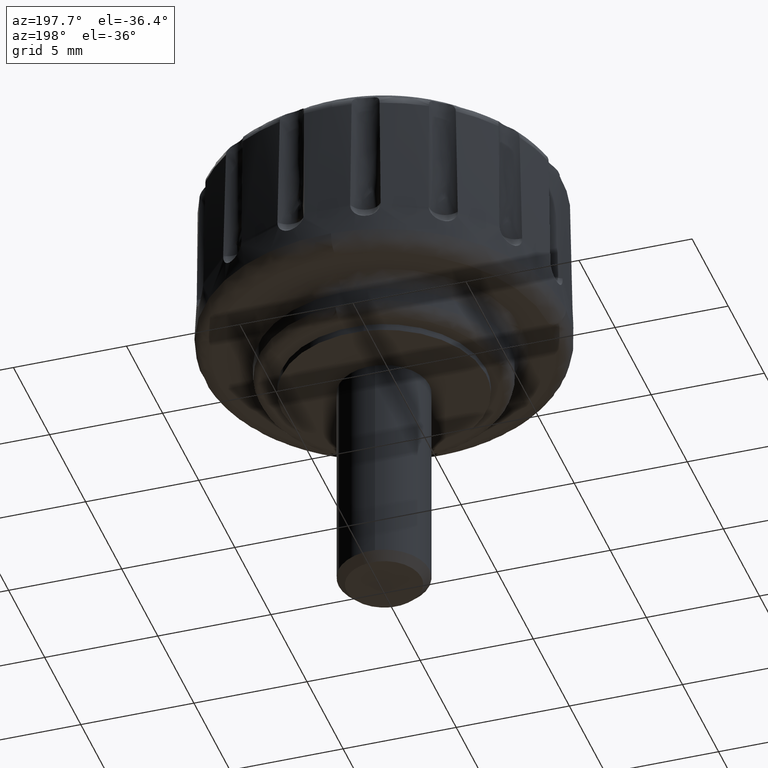
[diagram: clean part render]
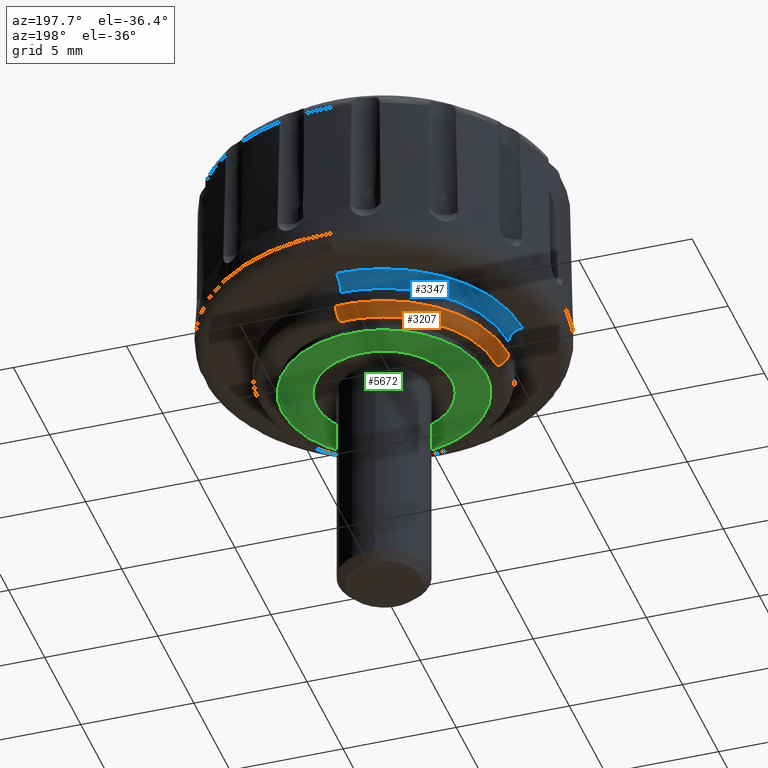
[diagram: same view with three faces highlighted in distinct colors, each labeled with its STEP entity id]
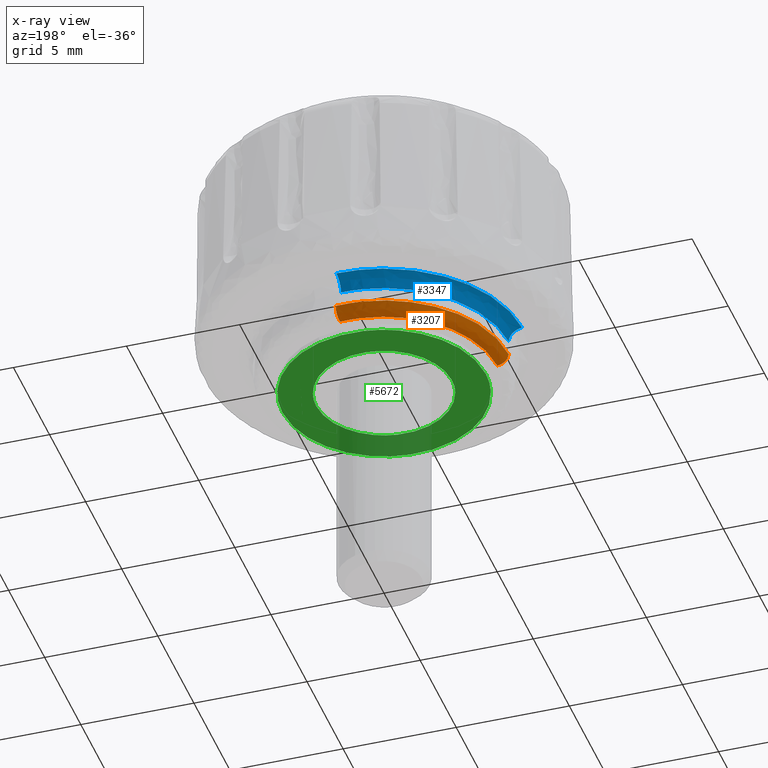
[diagram: x-ray of the same camera — body ghosted, the three highlighted faces saturated]
A machine part, auxiliary view with three faces highlighted in distinct colors.
The next image is the same camera in x-ray (body ghosted, the three faces saturated) — at least one of them is partly hidden behind the body in this view.
Their STEP definitions:

[orange] entity #3207 — the highlighted face is a freeform B-spline surface patch.
#1262=CARTESIAN_POINT('',(0.384421889351672,5.499328834182221,0.786914524875779));
#1263=VERTEX_POINT('',#1262);
#1277=CARTESIAN_POINT('',(-5.512530897101097,0.034636708100191,0.786909423287084));
#1278=VERTEX_POINT('',#1277);
#1279=CARTESIAN_POINT('',(-5.512530897101098,0.034636708100191,0.786909423287084));
#1280=CARTESIAN_POINT('',(-5.478161256669772,5.512748297112636,0.786911802029986));
#1281=CARTESIAN_POINT('',(0.000003697378820,5.512748639231627,0.786914351743310));
#1282=CARTESIAN_POINT('',(0.192446966403553,5.512748651249976,0.786914441312567));
#1283=CARTESIAN_POINT('',(0.384421889351672,5.499328834182221,0.786914524875779));
#1291=(BOUNDED_CURVE()B_SPLINE_CURVE(2,(#1279,#1280,#1281,#1282,#1283),.UNSPECIFIED.,.F.,.U.)B_SPLINE_CURVE_WITH_KNOTS((3,2,3),(0.001109280860662,0.250000000000000,0.262166313464866),.UNSPECIFIED.)CURVE()GEOMETRIC_REPRESENTATION_ITEM()RATIONAL_B_SPLINE_CURVE((0.997412326266356,0.708406384553937,1.0,0.985746277152728,0.972879876387067))REPRESENTATION_ITEM(''));
#1292=EDGE_CURVE('',#1278,#1263,#1291,.T.);
#3068=CARTESIAN_POINT('',(0.349567217099414,5.000716997999804,0.300003000000015));
#3069=VERTEX_POINT('',#3068);
#3085=CARTESIAN_POINT('',(0.384421889351671,5.499328834182215,0.786914524875778));
#3086=CARTESIAN_POINT('',(0.383532774641746,5.486609646496433,0.300003078407448));
#3087=CARTESIAN_POINT('',(0.349567217099414,5.000716997999804,0.300003000000015));
#3095=(BOUNDED_CURVE()B_SPLINE_CURVE(2,(#3085,#3086,#3087),.UNSPECIFIED.,.F.,.U.)B_SPLINE_CURVE_WITH_KNOTS((3,3),(-1.730267222669182,-0.268636184484267),.UNSPECIFIED.)CURVE()GEOMETRIC_REPRESENTATION_ITEM()RATIONAL_B_SPLINE_CURVE((0.869682888467702,0.623088199854952,0.870053183016240))REPRESENTATION_ITEM(''));
#3096=EDGE_CURVE('',#1263,#3069,#3095,.T.);
#3102=CARTESIAN_POINT('',(-5.012917982175576,0.031498737977902,0.300003076751430));
#3103=VERTEX_POINT('',#3102);
#3104=CARTESIAN_POINT('',(-5.512530897101097,0.034636708100191,0.786909423287084));
#3105=CARTESIAN_POINT('',(-5.499860380398856,0.036047818024192,0.300003937687814));
#3106=CARTESIAN_POINT('',(-5.012917982175576,0.031498737977902,0.300003076751430));
#3114=(BOUNDED_CURVE()B_SPLINE_CURVE(2,(#3104,#3105,#3106),.UNSPECIFIED.,.F.,.U.)B_SPLINE_CURVE_WITH_KNOTS((3,3),(-1.730244594685059,-0.268631820707516),.UNSPECIFIED.)CURVE()GEOMETRIC_REPRESENTATION_ITEM()RATIONAL_B_SPLINE_CURVE((0.889688074131002,0.637429758978865,0.890076209232669))REPRESENTATION_ITEM(''));
#3115=EDGE_CURVE('',#1278,#3103,#3114,.T.);
#3158=CARTESIAN_POINT('',(-5.512973813706453,-0.005646341370654,0.821268347343482));
#3159=CARTESIAN_POINT('',(-5.512504405184434,0.031706035659150,0.821268347343482));
#3160=CARTESIAN_POINT('',(-5.442762451582073,5.581302226522022,0.821268347343482));
#3161=CARTESIAN_POINT('',(0.069269887469975,5.512032339052050,0.821268347343482));
#3162=CARTESIAN_POINT('',(0.227021732656900,5.510049866546063,0.821268347343482));
#3163=CARTESIAN_POINT('',(0.405205497514313,5.497594222001106,0.821268347343482));
#3164=CARTESIAN_POINT('',(0.426069079506836,5.496135787438106,0.821268347343482));
#3165=CARTESIAN_POINT('',(-5.536748977086195,-0.005670691692843,0.262813573626887));
#3166=CARTESIAN_POINT('',(-5.536277544200433,0.031842770605368,0.262813573626887));
#3167=CARTESIAN_POINT('',(-5.466234822555754,5.605372061930523,0.262813573626887));
#3168=CARTESIAN_POINT('',(0.069568619687385,5.535803442243139,0.262813573626887));
#3169=CARTESIAN_POINT('',(0.228000782978390,5.533812420157684,0.262813573626887));
#3170=CARTESIAN_POINT('',(0.406952980312403,5.521303059597728,0.262813573626887));
#3171=CARTESIAN_POINT('',(0.427906538257529,5.519838335412976,0.262813573626887));
#3172=CARTESIAN_POINT('',(-4.979055654392313,-0.005099506886517,0.301182359788116));
#3173=CARTESIAN_POINT('',(-4.978631706948564,0.028635382909776,0.301182359788116));
#3174=CARTESIAN_POINT('',(-4.915644092610754,5.040766625944399,0.301182359788116));
#3175=CARTESIAN_POINT('',(0.062561266666822,4.978205359277575,0.301182359788116));
#3176=CARTESIAN_POINT('',(0.205035227783048,4.976414884431483,0.301182359788116));
#3177=CARTESIAN_POINT('',(0.365962326643643,4.965165538888343,0.301182359788116));
#3178=CARTESIAN_POINT('',(0.384805321259812,4.963848350179882,0.301182359788116));
#3186=(BOUNDED_SURFACE()B_SPLINE_SURFACE(2,2,((#3158,#3165,#3172),(#3159,#3166,#3173),(#3160,#3167,#3174),(#3161,#3168,#3175),(#3162,#3169,#3176),(#3163,#3170,#3177),(#3164,#3171,#3178)),.UNSPECIFIED.,.F.,.F.,.U.)B_SPLINE_SURFACE_WITH_KNOTS((3,1,2,1,3),(3,3),(0.0,0.088273710292649,9.221629045932817,9.586962910948568,9.634659593390378),(0.0,0.894409350514514),.UNSPECIFIED.)GEOMETRIC_REPRESENTATION_ITEM()RATIONAL_B_SPLINE_SURFACE(((0.921344347333442,0.614404250083418,0.921765046046611),(0.918750882010995,0.612674781485530,0.919170396511631),(0.647821121974823,0.432003573676989,0.648116926158316),(0.916157416688549,0.610945312887642,0.916575746976652),(0.905423975136218,0.603787650145302,0.905837404384809),(0.894259993830297,0.596342879271023,0.894668325448906),(0.892970779571418,0.595483158665784,0.893378522516768)))REPRESENTATION_ITEM('')SURFACE());
#3187=CARTESIAN_POINT('',(-5.012917982175576,0.031498737977902,0.300003076751430));
#3188=CARTESIAN_POINT('',(-4.981571946822657,5.012920362545322,0.300003040964170));
#3189=CARTESIAN_POINT('',(-0.000003284450168,5.012920098238657,0.300003002604726));
#3190=CARTESIAN_POINT('',(0.174995022798396,5.012920088953787,0.300003001257191));
#3191=CARTESIAN_POINT('',(0.349567217099414,5.000716997999804,0.300003000000015));
#3199=(BOUNDED_CURVE()B_SPLINE_CURVE(2,(#3187,#3188,#3189,#3190,#3191),.UNSPECIFIED.,.F.,.U.)B_SPLINE_CURVE_WITH_KNOTS((3,2,3),(0.001109324179263,0.250000000000000,0.262166313464810),.UNSPECIFIED.)CURVE()GEOMETRIC_REPRESENTATION_ITEM()RATIONAL_B_SPLINE_CURVE((0.997412225665329,0.708406435304836,1.0,0.985746277152794,0.972879876387184))REPRESENTATION_ITEM(''));
#3200=EDGE_CURVE('',#3103,#3069,#3199,.T.);
#3201=ORIENTED_EDGE('',*,*,#3200,.F.);
#3202=ORIENTED_EDGE('',*,*,#3115,.F.);
#3203=ORIENTED_EDGE('',*,*,#1292,.T.);
#3204=ORIENTED_EDGE('',*,*,#3096,.T.);
#3205=EDGE_LOOP('',(#3201,#3202,#3203,#3204));
#3206=FACE_OUTER_BOUND('',#3205,.T.);
#3207=ADVANCED_FACE('',(#3206),#3186,.T.);

[blue] entity #3347 — the highlighted face is a freeform B-spline surface patch.
#1319=CARTESIAN_POINT('',(-5.528341442719830,0.069474838659130,1.415685228116415));
#1320=VERTEX_POINT('',#1319);
#1337=CARTESIAN_POINT('',(0.138949700684318,5.527468814949082,1.415703011452834));
#1338=VERTEX_POINT('',#1337);
#1339=CARTESIAN_POINT('',(-5.528341442719830,0.069474838659130,1.415685228116414));
#1340=CARTESIAN_POINT('',(-5.459941861227921,5.529212186118864,1.415693899091745));
#1341=CARTESIAN_POINT('',(0.000005491288727,5.529214931287695,1.415702787986719));
#1342=CARTESIAN_POINT('',(0.069488534096570,5.529214966222589,1.415702901106395));
#1343=CARTESIAN_POINT('',(0.138949700684318,5.527468814949082,1.415703011452834));
#1351=(BOUNDED_CURVE()B_SPLINE_CURVE(2,(#1339,#1340,#1341,#1342,#1343),.UNSPECIFIED.,.F.,.U.)B_SPLINE_CURVE_WITH_KNOTS((3,2,3),(0.002215703893620,0.250000000000000,0.254420108230194),.UNSPECIFIED.)CURVE()GEOMETRIC_REPRESENTATION_ITEM()RATIONAL_B_SPLINE_CURVE((0.994854296069009,0.709702639767907,1.0,0.994821521091819,0.989826157681574))REPRESENTATION_ITEM(''));
#1352=EDGE_CURVE('',#1320,#1338,#1351,.T.);
#3238=CARTESIAN_POINT('',(0.154022454017724,6.127072600347706,1.999999999997296));
#3239=VERTEX_POINT('',#3238);
#3240=CARTESIAN_POINT('',(0.138949700684318,5.527468814949082,1.415703011452834));
#3241=CARTESIAN_POINT('',(0.139334121900410,5.542761228487126,1.999998759080712));
#3242=CARTESIAN_POINT('',(0.154022454017724,6.127072600347706,1.999999999997296));
#3250=(BOUNDED_CURVE()B_SPLINE_CURVE(2,(#3240,#3241,#3242),.UNSPECIFIED.,.F.,.U.)B_SPLINE_CURVE_WITH_KNOTS((3,3),(-1.731981056334706,-0.280011153522098),.UNSPECIFIED.)CURVE()GEOMETRIC_REPRESENTATION_ITEM()RATIONAL_B_SPLINE_CURVE((0.889171025574241,0.635423309758477,0.885013819820878))REPRESENTATION_ITEM(''));
#3251=EDGE_CURVE('',#1338,#3239,#3250,.T.);
#3268=CARTESIAN_POINT('',(-6.127385711495315,0.076994806956031,1.999999282400137));
#3269=VERTEX_POINT('',#3268);
#3285=CARTESIAN_POINT('',(-5.528341442719830,0.069474838659130,1.415685228116415));
#3286=CARTESIAN_POINT('',(-5.544084972699484,0.066101186515238,1.998432095490165));
#3287=CARTESIAN_POINT('',(-6.127385711495315,0.076994806956031,1.999999282400137));
#3295=(BOUNDED_CURVE()B_SPLINE_CURVE(2,(#3285,#3286,#3287),.UNSPECIFIED.,.F.,.U.)B_SPLINE_CURVE_WITH_KNOTS((3,3),(-1.732051589559370,-0.282816808122727),.UNSPECIFIED.)CURVE()GEOMETRIC_REPRESENTATION_ITEM()RATIONAL_B_SPLINE_CURVE((0.889195679676114,0.635901551506037,0.884051127185709))REPRESENTATION_ITEM(''));
#3296=EDGE_CURVE('',#1320,#3269,#3295,.T.);
#3304=CARTESIAN_POINT('',(-5.530554803867165,0.029504697020573,1.374545802907274));
#3305=CARTESIAN_POINT('',(-5.529184746858280,0.084006055094916,1.374545802907274));
#3306=CARTESIAN_POINT('',(-5.388845249710164,5.666761470698981,1.374545802907274));
#3307=CARTESIAN_POINT('',(0.158650037697267,5.527308343863036,1.374545802907274));
#3308=CARTESIAN_POINT('',(0.178283936872622,5.526814786232047,1.374545802907274));
#3309=CARTESIAN_POINT('',(-5.502091775793388,0.029352850949177,2.044743365823149));
#3310=CARTESIAN_POINT('',(-5.500728769789778,0.083573717510473,2.044743365823150));
#3311=CARTESIAN_POINT('',(-5.361111530568553,5.637597454330296,2.044743365823150));
#3312=CARTESIAN_POINT('',(0.157833544481482,5.498862023711976,2.044743365823149));
#3313=CARTESIAN_POINT('',(0.177366397696126,5.498371006177812,2.044743365823149));
#3314=CARTESIAN_POINT('',(-6.171424394659709,0.032923642095090,1.998577366998780));
#3315=CARTESIAN_POINT('',(-6.169895578194352,0.093740508158310,1.998577366998781));
#3316=CARTESIAN_POINT('',(-6.013293821779506,6.323414416675836,1.998577366998781));
#3317=CARTESIAN_POINT('',(0.177034085653392,6.167801741385982,1.998577366998781));
#3318=CARTESIAN_POINT('',(0.198943121659752,6.167250991287286,1.998577366998780));
#3326=(BOUNDED_SURFACE()B_SPLINE_SURFACE(2,2,((#3304,#3309,#3314),(#3305,#3310,#3315),(#3306,#3311,#3316),(#3307,#3312,#3317),(#3308,#3313,#3318)),.UNSPECIFIED.,.F.,.F.,.U.)B_SPLINE_SURFACE_WITH_KNOTS((3,1,1,3),(3,3),(0.0,0.144320865447367,10.367613225550841,10.419193389704949),(0.0,1.073398149648283),.UNSPECIFIED.)GEOMETRIC_REPRESENTATION_ITEM()RATIONAL_B_SPLINE_SURFACE(((0.923377986211212,0.614047137366235,0.918740406311540),(0.919591376361382,0.611529038631662,0.914972814356862),(0.647571760643282,0.430635765418025,0.644319391813181),(0.917158097902937,0.609910906410475,0.912551756812753),(0.918511429294322,0.610810872923861,0.913898291223322)))REPRESENTATION_ITEM('')SURFACE());
#3327=ORIENTED_EDGE('',*,*,#1352,.F.);
#3328=ORIENTED_EDGE('',*,*,#3296,.T.);
#3329=CARTESIAN_POINT('',(-6.127385711495315,0.076994806956031,1.999999282400136));
#3330=CARTESIAN_POINT('',(-6.051894016677041,6.129001517117378,1.999999632293274));
#3331=CARTESIAN_POINT('',(0.000014293009842,6.129008040532876,1.999999990979959));
#3332=CARTESIAN_POINT('',(0.077030447017804,6.129008123549397,1.999999995544580));
#3333=CARTESIAN_POINT('',(0.154022454017724,6.127072600347706,1.999999999997296));
#3341=(BOUNDED_CURVE()B_SPLINE_CURVE(2,(#3329,#3330,#3331,#3332,#3333),.UNSPECIFIED.,.F.,.U.)B_SPLINE_CURVE_WITH_KNOTS((3,2,3),(0.002215467439740,0.250000000000000,0.254420105170893),.UNSPECIFIED.)CURVE()GEOMETRIC_REPRESENTATION_ITEM()RATIONAL_B_SPLINE_CURVE((0.994854840294624,0.709702362744955,1.0,0.994821524676012,0.989826164596479))REPRESENTATION_ITEM(''));
#3342=EDGE_CURVE('',#3269,#3239,#3341,.T.);
#3343=ORIENTED_EDGE('',*,*,#3342,.T.);
#3344=ORIENTED_EDGE('',*,*,#3251,.F.);
#3345=EDGE_LOOP('',(#3327,#3328,#3343,#3344));
#3346=FACE_OUTER_BOUND('',#3345,.T.);
#3347=ADVANCED_FACE('',(#3346),#3326,.F.);

[green] entity #5672 — the highlighted face is a freeform B-spline surface patch.
#702=CARTESIAN_POINT('',(0.354098108677182,-2.979029125304052,3.052385E-016));
#703=VERTEX_POINT('',#702);
#709=CARTESIAN_POINT('',(-3.0,0.0,0.0));
#710=VERTEX_POINT('',#709);
#711=CARTESIAN_POINT('',(0.354098108677182,-2.979029125304053,3.052385E-016));
#712=CARTESIAN_POINT('',(0.177670037019289,-3.000000000000001,0.0));
#713=CARTESIAN_POINT('',(0.0,-3.0,0.0));
#714=CARTESIAN_POINT('',(-3.0,-3.0,0.0));
#715=CARTESIAN_POINT('',(-3.0,0.0,0.0));
#723=(BOUNDED_CURVE()B_SPLINE_CURVE(2,(#711,#712,#713,#714,#715),.UNSPECIFIED.,.F.,.U.)B_SPLINE_CURVE_WITH_KNOTS((3,2,3),(0.229562734211208,0.250000000000000,0.500000000000000),.UNSPECIFIED.)CURVE()GEOMETRIC_REPRESENTATION_ITEM()RATIONAL_B_SPLINE_CURVE((0.956027265162496,0.976056253757498,1.0,0.707106781186548,1.0))REPRESENTATION_ITEM(''));
#724=EDGE_CURVE('',#703,#710,#723,.T.);
#726=CARTESIAN_POINT('',(-0.183145618619682,2.994404395264676,1.387779E-017));
#727=VERTEX_POINT('',#726);
#728=CARTESIAN_POINT('',(-3.0,0.0,0.0));
#729=CARTESIAN_POINT('',(-3.0,2.822118200688539,0.0));
#730=CARTESIAN_POINT('',(-0.183145618619682,2.994404395264676,1.387779E-017));
#738=(BOUNDED_CURVE()B_SPLINE_CURVE(2,(#728,#729,#730),.UNSPECIFIED.,.F.,.U.)B_SPLINE_CURVE_WITH_KNOTS((3,3),(0.500000000000000,0.739332962240226),.UNSPECIFIED.)CURVE()GEOMETRIC_REPRESENTATION_ITEM()RATIONAL_B_SPLINE_CURVE((1.0,0.719603993285207,0.976072041669468))REPRESENTATION_ITEM(''));
#739=EDGE_CURVE('',#710,#727,#738,.T.);
#817=CARTESIAN_POINT('',(3.0,0.0,0.0));
#818=VERTEX_POINT('',#817);
#819=CARTESIAN_POINT('',(-0.183145618619682,2.994404395264676,1.387779E-017));
#820=CARTESIAN_POINT('',(-0.091658289910920,3.0,0.0));
#821=CARTESIAN_POINT('',(0.0,3.0,0.0));
#822=CARTESIAN_POINT('',(3.0,3.0,0.0));
#823=CARTESIAN_POINT('',(3.0,0.0,0.0));
#831=(BOUNDED_CURVE()B_SPLINE_CURVE(2,(#819,#820,#821,#822,#823),.UNSPECIFIED.,.F.,.U.)B_SPLINE_CURVE_WITH_KNOTS((3,2,3),(0.739332962240227,0.750000000000000,1.0),.UNSPECIFIED.)CURVE()GEOMETRIC_REPRESENTATION_ITEM()RATIONAL_B_SPLINE_CURVE((0.976072041669469,0.987502787901342,1.0,0.707106781186548,1.0))REPRESENTATION_ITEM(''));
#832=EDGE_CURVE('',#727,#818,#831,.T.);
#834=CARTESIAN_POINT('',(3.0,0.0,0.0));
#835=CARTESIAN_POINT('',(3.000000000000001,-2.664527716944557,0.0));
#836=CARTESIAN_POINT('',(0.354098108677182,-2.979029125304053,3.052385E-016));
#844=(BOUNDED_CURVE()B_SPLINE_CURVE(2,(#834,#835,#836),.UNSPECIFIED.,.F.,.U.)B_SPLINE_CURVE_WITH_KNOTS((3,3),(0.0,0.229562734211208),.UNSPECIFIED.)CURVE()GEOMETRIC_REPRESENTATION_ITEM()RATIONAL_B_SPLINE_CURVE((1.0,0.731050527429049,0.956027265162496))REPRESENTATION_ITEM(''));
#845=EDGE_CURVE('',#818,#703,#844,.T.);
#1055=CARTESIAN_POINT('',(-0.531154058179590,4.468542868372122,2.218303E-017));
#1056=VERTEX_POINT('',#1055);
#1057=CARTESIAN_POINT('',(4.500000000000000,0.0,0.0));
#1058=VERTEX_POINT('',#1057);
#1059=CARTESIAN_POINT('',(-0.531154058179590,4.468542868372123,2.218303E-017));
#1060=CARTESIAN_POINT('',(-0.266508540681286,4.499999999999999,0.0));
#1061=CARTESIAN_POINT('',(0.0,4.500000000000000,0.0));
#1062=CARTESIAN_POINT('',(4.500000000000000,4.500000000000000,0.0));
#1063=CARTESIAN_POINT('',(4.500000000000000,0.0,0.0));
#1071=(BOUNDED_CURVE()B_SPLINE_CURVE(2,(#1059,#1060,#1061,#1062,#1063),.UNSPECIFIED.,.F.,.U.)B_SPLINE_CURVE_WITH_KNOTS((3,2,3),(0.229562473347405,0.250000000000000,0.500000000000000),.UNSPECIFIED.)CURVE()GEOMETRIC_REPRESENTATION_ITEM()RATIONAL_B_SPLINE_CURVE((0.956026753858129,0.976055948136542,1.0,0.707106781186547,1.0))REPRESENTATION_ITEM(''));
#1072=EDGE_CURVE('',#1056,#1058,#1071,.T.);
#1113=CARTESIAN_POINT('',(0.274714567958497,-4.491606828979627,-3.214777E-013));
#1114=VERTEX_POINT('',#1113);
#1120=CARTESIAN_POINT('',(4.500000000000000,0.0,0.0));
#1121=CARTESIAN_POINT('',(4.500000000000001,-4.233180945737121,0.0));
#1122=CARTESIAN_POINT('',(0.274714567958497,-4.491606828979627,-3.214777E-013));
#1130=(BOUNDED_CURVE()B_SPLINE_CURVE(2,(#1120,#1121,#1122),.UNSPECIFIED.,.F.,.U.)B_SPLINE_CURVE_WITH_KNOTS((3,3),(0.500000000000000,0.739333110523381),.UNSPECIFIED.)CURVE()GEOMETRIC_REPRESENTATION_ITEM()RATIONAL_B_SPLINE_CURVE((1.0,0.719603819560684,0.976072359468702))REPRESENTATION_ITEM(''));
#1131=EDGE_CURVE('',#1058,#1114,#1130,.T.);
#1154=CARTESIAN_POINT('',(-4.500000000000000,0.0,0.0));
#1155=VERTEX_POINT('',#1154);
#1156=CARTESIAN_POINT('',(-4.500000000000000,0.0,0.0));
#1157=CARTESIAN_POINT('',(-4.500000000000001,3.996785362774416,0.0));
#1158=CARTESIAN_POINT('',(-0.531154058179590,4.468542868372122,2.218303E-017));
#1166=(BOUNDED_CURVE()B_SPLINE_CURVE(2,(#1156,#1157,#1158),.UNSPECIFIED.,.F.,.U.)B_SPLINE_CURVE_WITH_KNOTS((3,3),(0.0,0.229562473347405),.UNSPECIFIED.)CURVE()GEOMETRIC_REPRESENTATION_ITEM()RATIONAL_B_SPLINE_CURVE((1.0,0.731050833050005,0.956026753858129))REPRESENTATION_ITEM(''));
#1167=EDGE_CURVE('',#1155,#1056,#1166,.T.);
#1169=CARTESIAN_POINT('',(0.274714567958497,-4.491606828979627,-3.214777E-013));
#1170=CARTESIAN_POINT('',(0.137485499458138,-4.500000000000000,0.0));
#1171=CARTESIAN_POINT('',(0.0,-4.500000000000000,0.0));
#1172=CARTESIAN_POINT('',(-4.500000000000000,-4.500000000000000,0.0));
#1173=CARTESIAN_POINT('',(-4.500000000000000,0.0,0.0));
#1181=(BOUNDED_CURVE()B_SPLINE_CURVE(2,(#1169,#1170,#1171,#1172,#1173),.UNSPECIFIED.,.F.,.U.)B_SPLINE_CURVE_WITH_KNOTS((3,2,3),(0.739333110523381,0.750000000000000,1.0),.UNSPECIFIED.)CURVE()GEOMETRIC_REPRESENTATION_ITEM()RATIONAL_B_SPLINE_CURVE((0.976072359468702,0.987502961625863,1.0,0.707106781186547,1.0))REPRESENTATION_ITEM(''));
#1182=EDGE_CURVE('',#1114,#1155,#1181,.T.);
#5655=CARTESIAN_POINT('',(4.949549982556253,-4.949440710012750,0.0));
#5656=CARTESIAN_POINT('',(-4.949550223955065,-4.949440710012750,0.0));
#5657=CARTESIAN_POINT('',(4.949549982556253,4.949468149010973,0.0));
#5658=CARTESIAN_POINT('',(-4.949550223955065,4.949468149010973,0.0));
#5659=B_SPLINE_SURFACE_WITH_KNOTS('',1,1,((#5655,#5657),(#5656,#5658)),.UNSPECIFIED.,.F.,.F.,.U.,(2,2),(2,2),(0.0,9.899100206511317),(0.0,9.898908859023724),.UNSPECIFIED.);
#5660=ORIENTED_EDGE('',*,*,#1167,.T.);
#5661=ORIENTED_EDGE('',*,*,#1072,.T.);
#5662=ORIENTED_EDGE('',*,*,#1131,.T.);
#5663=ORIENTED_EDGE('',*,*,#1182,.T.);
#5664=EDGE_LOOP('',(#5660,#5661,#5662,#5663));
#5665=FACE_OUTER_BOUND('',#5664,.T.);
#5666=ORIENTED_EDGE('',*,*,#739,.F.);
#5667=ORIENTED_EDGE('',*,*,#724,.F.);
#5668=ORIENTED_EDGE('',*,*,#845,.F.);
#5669=ORIENTED_EDGE('',*,*,#832,.F.);
#5670=EDGE_LOOP('',(#5666,#5667,#5668,#5669));
#5671=FACE_BOUND('',#5670,.T.);
#5672=ADVANCED_FACE('',(#5665,#5671),#5659,.T.);